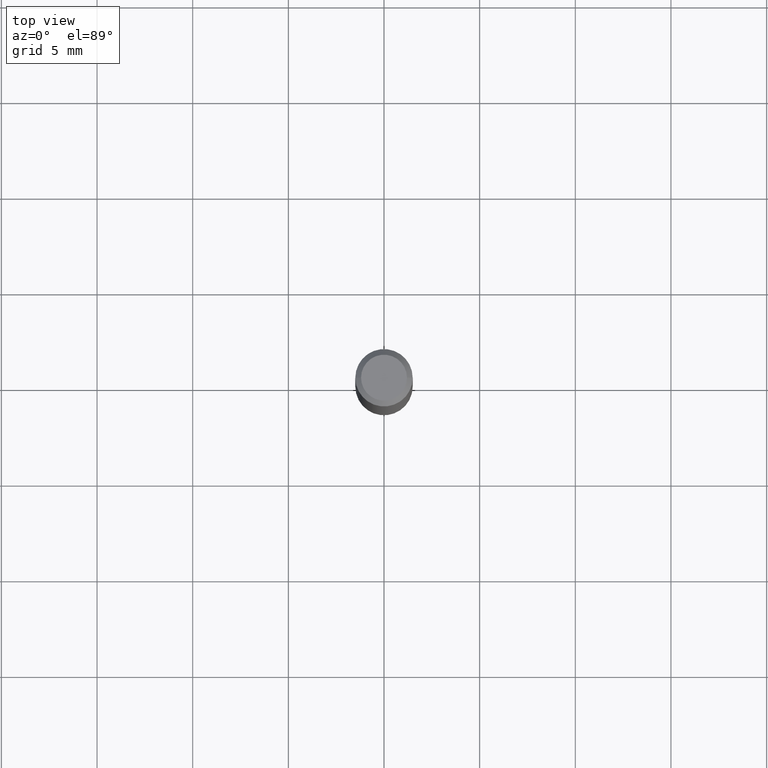
[diagram: clean part render]
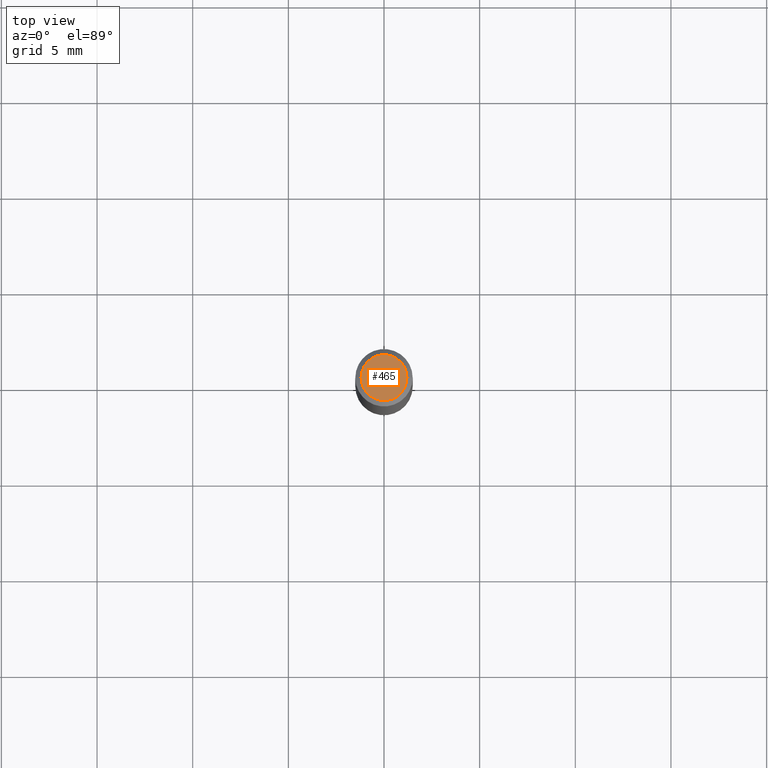
[diagram: same view with one face highlighted and labeled with its STEP entity id]
A machine part, top view. The second image highlights one B-rep face of the part: STEP entity #465.
In plain terms, the highlighted planar face has unit normal (0, -0, -1).
Its self-contained STEP definition (entity closure, byte-faithful):
#29 = ORIENTED_EDGE ( 'NONE', *, *, #231, .T. ) ;
#55 = CARTESIAN_POINT ( 'NONE',  ( -0.04724000000000000421, 3.504923541997677355E-16, -3.380025165670481712E-19 ) ) ;
#75 = DIRECTION ( 'NONE',  ( 1.000000000000000000, -6.982962677686266711E-15, 4.876185090822587894E-29 ) ) ;
#126 = DIRECTION ( 'NONE',  ( 1.000000000000000000, -6.982962677686266711E-15, 4.876185090822587894E-29 ) ) ;
#138 = AXIS2_PLACEMENT_3D ( 'NONE', #214, #151, #75 ) ;
#151 = DIRECTION ( 'NONE',  ( -2.445468806185136597E-29, 3.491481338843145583E-15, 1.000000000000000000 ) ) ;
#157 = PLANE ( 'NONE',  #446 ) ;
#161 = AXIS2_PLACEMENT_3D ( 'NONE', #251, #487, #126 ) ;
#186 = VERTEX_POINT ( 'NONE', #241 ) ;
#192 = CIRCLE ( 'NONE', #138, 0.04724000000000000421 ) ;
#214 = CARTESIAN_POINT ( 'NONE',  ( 8.265746106709734507E-48, -1.180129479067563789E-33, -3.380025165646692144E-19 ) ) ;
#231 = EDGE_CURVE ( 'NONE', #186, #478, #192, .T. ) ;
#236 = CARTESIAN_POINT ( 'NONE',  ( 4.132873053354867254E-48, -5.900647395337818946E-34, -1.690012582823346072E-19 ) ) ;
#241 = CARTESIAN_POINT ( 'NONE',  ( 0.04724000000000000421, -3.852183633974369345E-16, -3.380025165621689721E-19 ) ) ;
#251 = CARTESIAN_POINT ( 'NONE',  ( 8.265746106709734507E-48, -1.180129479067563789E-33, -3.380025165646692144E-19 ) ) ;
#311 = DIRECTION ( 'NONE',  ( -1.000000000000000000, 6.982962677686265922E-15, -4.876176775795935793E-29 ) ) ;
#375 = ORIENTED_EDGE ( 'NONE', *, *, #399, .T. ) ;
#379 = EDGE_LOOP ( 'NONE', ( #375, #29 ) ) ;
#399 = EDGE_CURVE ( 'NONE', #478, #186, #422, .T. ) ;
#421 = FACE_OUTER_BOUND ( 'NONE', #379, .T. ) ;
#422 = CIRCLE ( 'NONE', #161, 0.04724000000000000421 ) ;
#446 = AXIS2_PLACEMENT_3D ( 'NONE', #236, #467, #311 ) ;
#465 = ADVANCED_FACE ( 'NONE', ( #421 ), #157, .F. ) ;
#467 = DIRECTION ( 'NONE',  ( 2.438088387897960049E-29, -3.491481338843145188E-15, -1.000000000000000000 ) ) ;
#478 = VERTEX_POINT ( 'NONE', #55 ) ;
#487 = DIRECTION ( 'NONE',  ( -2.445468806185136597E-29, 3.491481338843145583E-15, 1.000000000000000000 ) ) ;